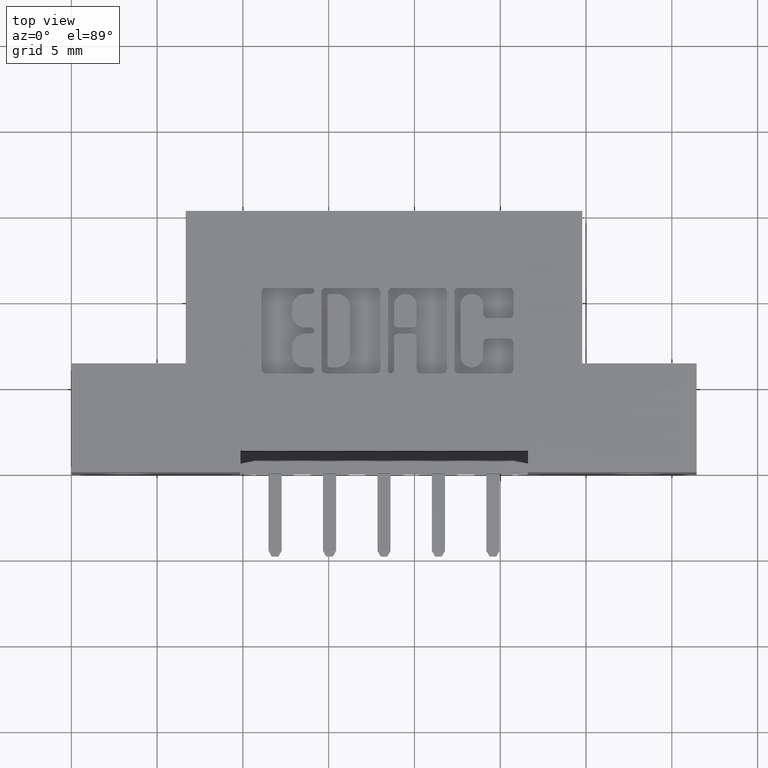
[diagram: clean part render]
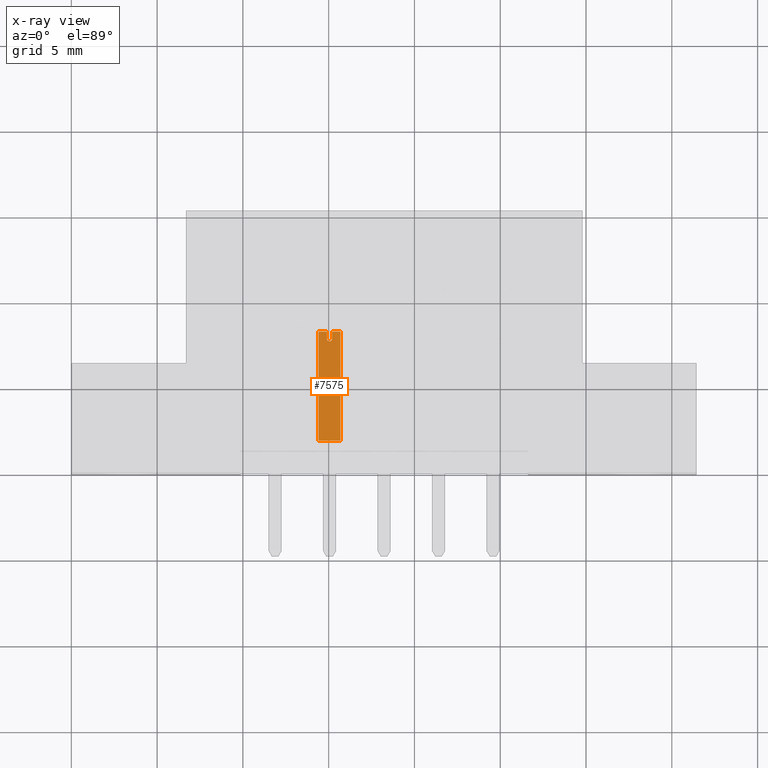
[diagram: x-ray — body ghosted, one internal face saturated and labeled with its STEP entity id]
A machine part, top view, then the same camera in x-ray: the body is ghosted and one INTERNAL B-rep face — a face not visible from any outside direction — is saturated and labeled: STEP entity #7575.
In plain terms, the highlighted planar face has unit normal (-0, 0, -1).
Its self-contained STEP definition (entity closure, byte-faithful):
#300 = VERTEX_POINT ( 'NONE', #3955 ) ;
#470 = EDGE_CURVE ( 'NONE', #2687, #7345, #3353, .T. ) ;
#480 = ORIENTED_EDGE ( 'NONE', *, *, #6942, .F. ) ;
#734 = CARTESIAN_POINT ( 'NONE',  ( 0.3300000000009334356, 0.01250000000002267700, -0.02499999999959576225 ) ) ;
#750 = CARTESIAN_POINT ( 'NONE',  ( 0.3300000000009334356, 0.01250000000002267700, -0.02499999999959576225 ) ) ;
#800 = LINE ( 'NONE', #3401, #4157 ) ;
#905 = VERTEX_POINT ( 'NONE', #6968 ) ;
#1073 = CIRCLE ( 'NONE', #4558, 0.006000000000019004021 ) ;
#1092 = VECTOR ( 'NONE', #3743, 39.37007874015748143 ) ;
#1270 = CARTESIAN_POINT ( 'NONE',  ( 0.3300000000009334356, 0.01250000000002267700, -0.02499999999959576225 ) ) ;
#1274 = EDGE_LOOP ( 'NONE', ( #6828, #3681, #2440, #1752, #6864, #6781, #4644, #1440, #480 ) ) ;
#1440 = ORIENTED_EDGE ( 'NONE', *, *, #7114, .T. ) ;
#1445 = CARTESIAN_POINT ( 'NONE',  ( 0.3300000000009428724, 0.01250000000000949657, -0.005999999999610524347 ) ) ;
#1752 = ORIENTED_EDGE ( 'NONE', *, *, #5088, .T. ) ;
#1959 = VERTEX_POINT ( 'NONE', #3861 ) ;
#2117 = VECTOR ( 'NONE', #7609, 39.37007874015748143 ) ;
#2358 = CIRCLE ( 'NONE', #8067, 0.006000000000019004021 ) ;
#2440 = ORIENTED_EDGE ( 'NONE', *, *, #7759, .T. ) ;
#2489 = LINE ( 'NONE', #1270, #1092 ) ;
#2648 = VERTEX_POINT ( 'NONE', #734 ) ;
#2687 = VERTEX_POINT ( 'NONE', #5259 ) ;
#2722 = LINE ( 'NONE', #1445, #2117 ) ;
#2808 = CARTESIAN_POINT ( 'NONE',  ( 0.3300000000009719048, 0.01249999999995103465, 0.006000000000389784684 ) ) ;
#2819 = DIRECTION ( 'NONE',  ( 1.000000000000000000, -4.273739045408888455E-14, 2.215976410425311131E-13 ) ) ;
#2987 = DIRECTION ( 'NONE',  ( 1.000000000000000000, -4.273739045408888455E-14, 2.215976410425311131E-13 ) ) ;
#3000 = EDGE_CURVE ( 'NONE', #7842, #1959, #2722, .T. ) ;
#3155 = CARTESIAN_POINT ( 'NONE',  ( 0.3462132034365514865, 0.01249999999996981651, 3.871711569020676948E-13 ) ) ;
#3255 = DIRECTION ( 'NONE',  ( -2.215976410433042725E-13, -4.123243244667004190E-15, -1.000000000000000000 ) ) ;
#3353 = LINE ( 'NONE', #6450, #4411 ) ;
#3384 = CARTESIAN_POINT ( 'NONE',  ( 0.5802132034373231884, 0.01249999999996189402, -0.02499999999952200180 ) ) ;
#3401 = CARTESIAN_POINT ( 'NONE',  ( 0.5802132034373906899, 0.01249999999998292928, 0.02500000000042200757 ) ) ;
#3537 = LINE ( 'NONE', #3606, #6134 ) ;
#3595 = EDGE_CURVE ( 'NONE', #2648, #6254, #2489, .T. ) ;
#3606 = CARTESIAN_POINT ( 'NONE',  ( 0.3300000000009980505, 0.01249999999999631441, 0.02500000000038840597 ) ) ;
#3681 = ORIENTED_EDGE ( 'NONE', *, *, #6365, .T. ) ;
#3743 = DIRECTION ( 'NONE',  ( 1.000000000000000000, -4.273739045408888455E-14, 2.215976410425311131E-13 ) ) ;
#3861 = CARTESIAN_POINT ( 'NONE',  ( 0.3300000000009428724, 0.01250000000000949657, -0.005999999999610524347 ) ) ;
#3955 = CARTESIAN_POINT ( 'NONE',  ( 0.5802132034373906899, 0.01249999999998292928, 0.02500000000042200757 ) ) ;
#4157 = VECTOR ( 'NONE', #5949, 39.37007874015748143 ) ;
#4209 = CARTESIAN_POINT ( 'NONE',  ( 0.3300000000009719048, 0.01249999999995103465, 0.006000000000389784684 ) ) ;
#4411 = VECTOR ( 'NONE', #6355, 39.37007874015748143 ) ;
#4544 = CARTESIAN_POINT ( 'NONE',  ( 0.3300000000009334356, 0.01250000000002267700, -0.02499999999959576225 ) ) ;
#4558 = AXIS2_PLACEMENT_3D ( 'NONE', #3155, #5076, #6978 ) ;
#4599 = DIRECTION ( 'NONE',  ( -4.273739045408796947E-14, -1.000000000000000000, -4.123243244711579565E-15 ) ) ;
#4644 = ORIENTED_EDGE ( 'NONE', *, *, #3595, .T. ) ;
#4721 = VERTEX_POINT ( 'NONE', #6845 ) ;
#4915 = DIRECTION ( 'NONE',  ( -4.345403003167401548E-14, 1.000000000000000000, 4.123243244692480453E-15 ) ) ;
#5076 = DIRECTION ( 'NONE',  ( -4.345403003167401548E-14, 1.000000000000000000, 4.123243244692480453E-15 ) ) ;
#5081 = VECTOR ( 'NONE', #2987, 39.37007874015748143 ) ;
#5088 = EDGE_CURVE ( 'NONE', #905, #7842, #2358, .T. ) ;
#5130 = LINE ( 'NONE', #4544, #5311 ) ;
#5234 = EDGE_CURVE ( 'NONE', #1959, #2648, #5130, .T. ) ;
#5259 = CARTESIAN_POINT ( 'NONE',  ( 0.3300000000009980505, 0.01249999999999631441, 0.02500000000038840597 ) ) ;
#5311 = VECTOR ( 'NONE', #3255, 39.37007874015748143 ) ;
#5432 = LINE ( 'NONE', #4209, #5081 ) ;
#5903 = DIRECTION ( 'NONE',  ( 1.000000000000000000, -4.273739045408888455E-14, 2.215976410425310878E-13 ) ) ;
#5949 = DIRECTION ( 'NONE',  ( 2.215976410433042725E-13, 4.123243244667004190E-15, 1.000000000000000000 ) ) ;
#6134 = VECTOR ( 'NONE', #2819, 39.37007874015748143 ) ;
#6254 = VERTEX_POINT ( 'NONE', #3384 ) ;
#6299 = DIRECTION ( 'NONE',  ( 1.000000000000000000, -4.268512490086891095E-14, 2.215976410425291693E-13 ) ) ;
#6355 = DIRECTION ( 'NONE',  ( -2.215976410433042725E-13, -4.123243244667004190E-15, -1.000000000000000000 ) ) ;
#6365 = EDGE_CURVE ( 'NONE', #7345, #4721, #5432, .T. ) ;
#6450 = CARTESIAN_POINT ( 'NONE',  ( 0.3300000000009334356, 0.01250000000002267700, -0.02499999999959576225 ) ) ;
#6479 = PLANE ( 'NONE',  #7460 ) ;
#6563 = FACE_OUTER_BOUND ( 'NONE', #1274, .T. ) ;
#6781 = ORIENTED_EDGE ( 'NONE', *, *, #5234, .T. ) ;
#6828 = ORIENTED_EDGE ( 'NONE', *, *, #470, .T. ) ;
#6845 = CARTESIAN_POINT ( 'NONE',  ( 0.3462132034365682509, 0.01249999999996107523, 0.006000000000383228296 ) ) ;
#6864 = ORIENTED_EDGE ( 'NONE', *, *, #3000, .T. ) ;
#6942 = EDGE_CURVE ( 'NONE', #2687, #300, #3537, .T. ) ;
#6968 = CARTESIAN_POINT ( 'NONE',  ( 0.3522132034365516029, 0.01249999999997007671, 3.145334111943474297E-13 ) ) ;
#6978 = DIRECTION ( 'NONE',  ( 1.000000000000000000, -4.268512490086891095E-14, 2.215976410425291693E-13 ) ) ;
#7060 = CARTESIAN_POINT ( 'NONE',  ( 0.3462132034365392186, 0.01249999999999091942, -0.005999999999617080734 ) ) ;
#7114 = EDGE_CURVE ( 'NONE', #6254, #300, #800, .T. ) ;
#7345 = VERTEX_POINT ( 'NONE', #2808 ) ;
#7460 = AXIS2_PLACEMENT_3D ( 'NONE', #750, #4599, #5903 ) ;
#7491 = CARTESIAN_POINT ( 'NONE',  ( 0.3462132034365514865, 0.01249999999996981651, 3.871711569020676948E-13 ) ) ;
#7575 = ADVANCED_FACE ( 'NONE', ( #6563 ), #6479, .T. ) ;
#7609 = DIRECTION ( 'NONE',  ( -1.000000000000000000, 4.273739045408876464E-14, -2.214695856678285460E-13 ) ) ;
#7759 = EDGE_CURVE ( 'NONE', #4721, #905, #1073, .T. ) ;
#7842 = VERTEX_POINT ( 'NONE', #7060 ) ;
#8067 = AXIS2_PLACEMENT_3D ( 'NONE', #7491, #4915, #6299 ) ;